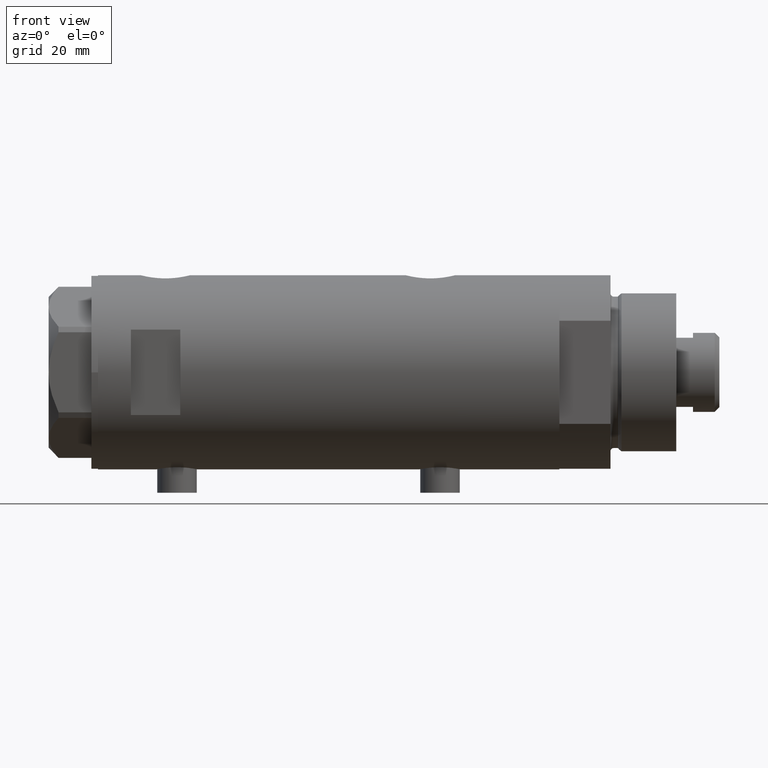
[diagram: clean part render]
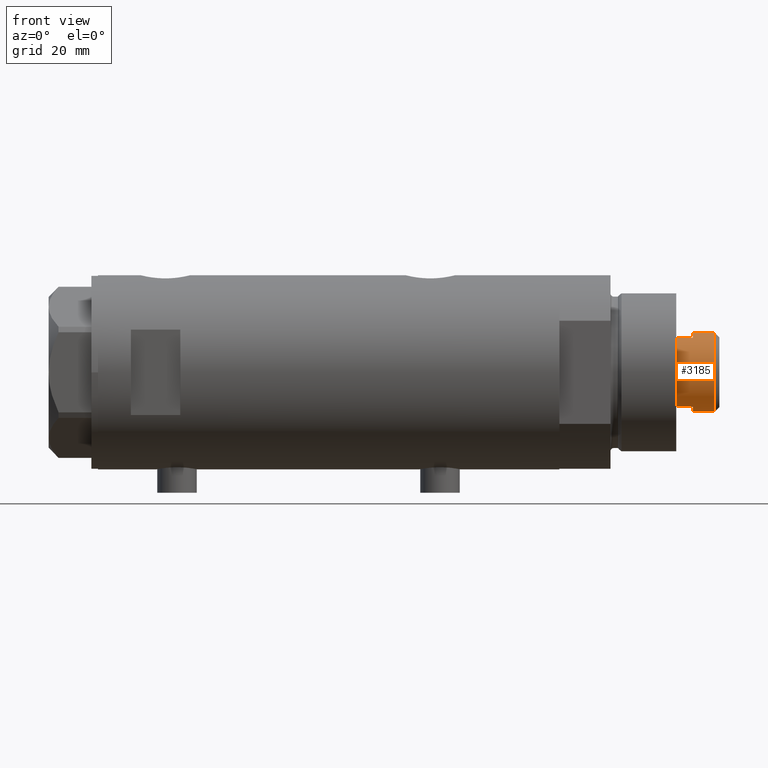
[diagram: same view with one face highlighted and labeled with its STEP entity id]
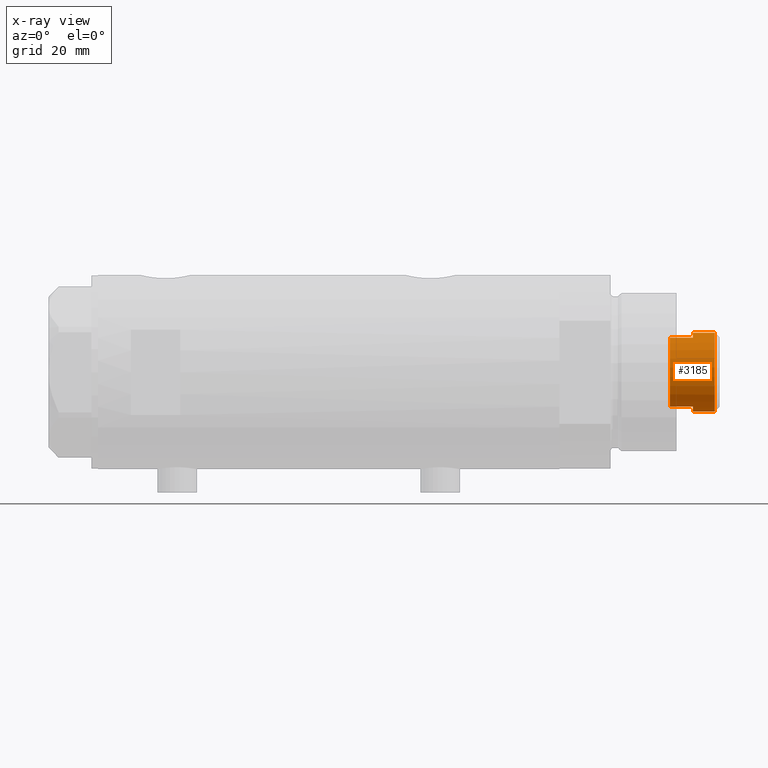
[diagram: x-ray of the same camera — body ghosted, the highlighted face saturated]
A machine part, front view. The second image highlights one B-rep face of the part: STEP entity #3185.
The next image is the same camera in x-ray: the body ghosted, the highlighted face saturated — about 0% of this face is hidden behind the body in this view.
In plain terms, the highlighted cylindrical surface (partial cylindrical patch) has radius 12 mm, axis along (-1, -0, 0).
Its self-contained STEP definition (entity closure, byte-faithful):
#49 = CARTESIAN_POINT ( 'NONE',  ( 0.000000000000000000, 0.000000000000000000, 157.2999999999999829 ) ) ;
#65 = CARTESIAN_POINT ( 'NONE',  ( -12.00000000000000000, 0.000000000000000000, 163.8999999999999773 ) ) ;
#124 = LINE ( 'NONE', #1616, #3124 ) ;
#173 = CIRCLE ( 'NONE', #2721, 12.00000000000000000 ) ;
#466 = ORIENTED_EDGE ( 'NONE', *, *, #4364, .T. ) ;
#488 = ORIENTED_EDGE ( 'NONE', *, *, #744, .T. ) ;
#553 = AXIS2_PLACEMENT_3D ( 'NONE', #2172, #654, #4765 ) ;
#557 = VECTOR ( 'NONE', #687, 1000.000000000000000 ) ;
#584 = VERTEX_POINT ( 'NONE', #3908 ) ;
#640 = AXIS2_PLACEMENT_3D ( 'NONE', #669, #3201, #1006 ) ;
#654 = DIRECTION ( 'NONE',  ( 0.000000000000000000, 0.000000000000000000, 1.000000000000000000 ) ) ;
#669 = CARTESIAN_POINT ( 'NONE',  ( 0.000000000000000000, 0.000000000000000000, 157.2999999999999829 ) ) ;
#687 = DIRECTION ( 'NONE',  ( -0.000000000000000000, -0.000000000000000000, -1.000000000000000000 ) ) ;
#744 = EDGE_CURVE ( 'NONE', #3638, #1571, #173, .T. ) ;
#871 = CYLINDRICAL_SURFACE ( 'NONE', #2701, 12.00000000000000000 ) ;
#1006 = DIRECTION ( 'NONE',  ( 1.000000000000000000, 0.000000000000000000, 0.000000000000000000 ) ) ;
#1041 = VERTEX_POINT ( 'NONE', #2642 ) ;
#1064 = ORIENTED_EDGE ( 'NONE', *, *, #2238, .T. ) ;
#1176 = DIRECTION ( 'NONE',  ( -1.000000000000000000, 0.000000000000000000, 0.000000000000000000 ) ) ;
#1287 = CARTESIAN_POINT ( 'NONE',  ( -12.00000000000000000, 0.000000000000000000, 157.2999999999999829 ) ) ;
#1293 = ORIENTED_EDGE ( 'NONE', *, *, #1940, .T. ) ;
#1387 = VERTEX_POINT ( 'NONE', #3265 ) ;
#1410 = DIRECTION ( 'NONE',  ( 1.000000000000000000, 0.000000000000000000, 0.000000000000000000 ) ) ;
#1448 = CIRCLE ( 'NONE', #4117, 12.00000000000000178 ) ;
#1508 = EDGE_CURVE ( 'NONE', #2966, #584, #2001, .T. ) ;
#1551 = LINE ( 'NONE', #4377, #557 ) ;
#1571 = VERTEX_POINT ( 'NONE', #65 ) ;
#1616 = CARTESIAN_POINT ( 'NONE',  ( 12.00000000000000000, 1.469576158976823947E-15, 157.2999999999999829 ) ) ;
#1700 = VERTEX_POINT ( 'NONE', #4413 ) ;
#1850 = VERTEX_POINT ( 'NONE', #2511 ) ;
#1940 = EDGE_CURVE ( 'NONE', #1387, #2966, #1448, .T. ) ;
#1974 = LINE ( 'NONE', #1287, #3592 ) ;
#1980 = CARTESIAN_POINT ( 'NONE',  ( -10.48861764008966091, -5.830000000000000959, 157.2999999999999829 ) ) ;
#2001 = LINE ( 'NONE', #1980, #4042 ) ;
#2172 = CARTESIAN_POINT ( 'NONE',  ( 0.000000000000000000, 0.000000000000000000, 150.2999999999999829 ) ) ;
#2207 = DIRECTION ( 'NONE',  ( 0.000000000000000000, 0.000000000000000000, -1.000000000000000000 ) ) ;
#2238 = EDGE_CURVE ( 'NONE', #1571, #1387, #1974, .T. ) ;
#2253 = CIRCLE ( 'NONE', #553, 12.00000000000000000 ) ;
#2279 = EDGE_CURVE ( 'NONE', #3638, #1700, #124, .T. ) ;
#2471 = ORIENTED_EDGE ( 'NONE', *, *, #2279, .F. ) ;
#2511 = CARTESIAN_POINT ( 'NONE',  ( 10.48861764008966446, -5.829999999999997407, 157.2999999999999829 ) ) ;
#2642 = CARTESIAN_POINT ( 'NONE',  ( 10.48861764008966269, -5.830000000000046256, 150.2999999999999829 ) ) ;
#2701 = AXIS2_PLACEMENT_3D ( 'NONE', #49, #3811, #1176 ) ;
#2721 = AXIS2_PLACEMENT_3D ( 'NONE', #4095, #2207, #4767 ) ;
#2730 = CARTESIAN_POINT ( 'NONE',  ( -10.48861764008966091, -5.830000000000003624, 157.2999999999999829 ) ) ;
#2739 = DIRECTION ( 'NONE',  ( -0.000000000000000000, -0.000000000000000000, -1.000000000000000000 ) ) ;
#2860 = CARTESIAN_POINT ( 'NONE',  ( 0.000000000000000000, 0.000000000000000000, 157.2999999999999829 ) ) ;
#2966 = VERTEX_POINT ( 'NONE', #2730 ) ;
#3013 = DIRECTION ( 'NONE',  ( -0.000000000000000000, -0.000000000000000000, -1.000000000000000000 ) ) ;
#3050 = CARTESIAN_POINT ( 'NONE',  ( 12.00000000000000000, 1.469576158976823947E-15, 163.8999999999999773 ) ) ;
#3124 = VECTOR ( 'NONE', #4548, 1000.000000000000000 ) ;
#3176 = ORIENTED_EDGE ( 'NONE', *, *, #3377, .T. ) ;
#3185 = ADVANCED_FACE ( 'NONE', ( #4471 ), #871, .T. ) ;
#3201 = DIRECTION ( 'NONE',  ( 0.000000000000000000, 0.000000000000000000, 1.000000000000000000 ) ) ;
#3265 = CARTESIAN_POINT ( 'NONE',  ( -12.00000000000000355, 0.000000000000000000, 157.2999999999999829 ) ) ;
#3377 = EDGE_CURVE ( 'NONE', #584, #1041, #2253, .T. ) ;
#3495 = EDGE_LOOP ( 'NONE', ( #2471, #488, #1064, #1293, #4223, #3176, #3909, #466 ) ) ;
#3592 = VECTOR ( 'NONE', #2739, 1000.000000000000000 ) ;
#3638 = VERTEX_POINT ( 'NONE', #3050 ) ;
#3773 = EDGE_CURVE ( 'NONE', #1850, #1041, #1551, .T. ) ;
#3811 = DIRECTION ( 'NONE',  ( -0.000000000000000000, -0.000000000000000000, -1.000000000000000000 ) ) ;
#3908 = CARTESIAN_POINT ( 'NONE',  ( -10.48861764008966091, -5.830000000000050697, 150.2999999999999829 ) ) ;
#3909 = ORIENTED_EDGE ( 'NONE', *, *, #3773, .F. ) ;
#4042 = VECTOR ( 'NONE', #3013, 1000.000000000000000 ) ;
#4095 = CARTESIAN_POINT ( 'NONE',  ( 0.000000000000000000, 0.000000000000000000, 163.8999999999999773 ) ) ;
#4117 = AXIS2_PLACEMENT_3D ( 'NONE', #2860, #4705, #1410 ) ;
#4223 = ORIENTED_EDGE ( 'NONE', *, *, #1508, .T. ) ;
#4364 = EDGE_CURVE ( 'NONE', #1850, #1700, #4410, .T. ) ;
#4377 = CARTESIAN_POINT ( 'NONE',  ( 10.48861764008966446, -5.829999999999997407, 157.2999999999999829 ) ) ;
#4410 = CIRCLE ( 'NONE', #640, 12.00000000000000178 ) ;
#4413 = CARTESIAN_POINT ( 'NONE',  ( 12.00000000000000355, 1.469576158976824342E-15, 157.2999999999999829 ) ) ;
#4471 = FACE_OUTER_BOUND ( 'NONE', #3495, .T. ) ;
#4548 = DIRECTION ( 'NONE',  ( -0.000000000000000000, -0.000000000000000000, -1.000000000000000000 ) ) ;
#4705 = DIRECTION ( 'NONE',  ( 0.000000000000000000, 0.000000000000000000, 1.000000000000000000 ) ) ;
#4765 = DIRECTION ( 'NONE',  ( 1.000000000000000000, 0.000000000000000000, 0.000000000000000000 ) ) ;
#4767 = DIRECTION ( 'NONE',  ( 1.000000000000000000, 0.000000000000000000, 0.000000000000000000 ) ) ;